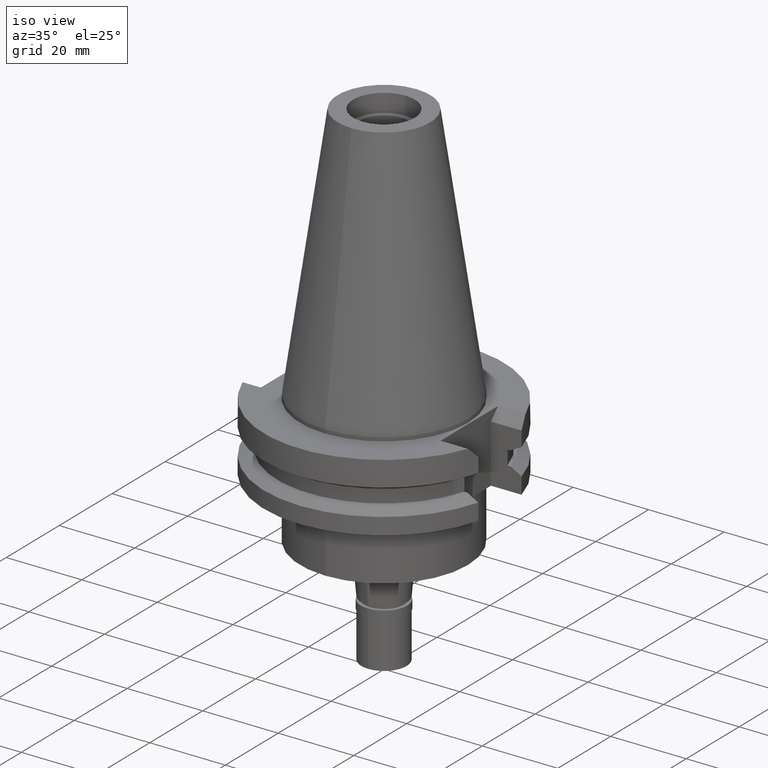
[diagram: clean part render]
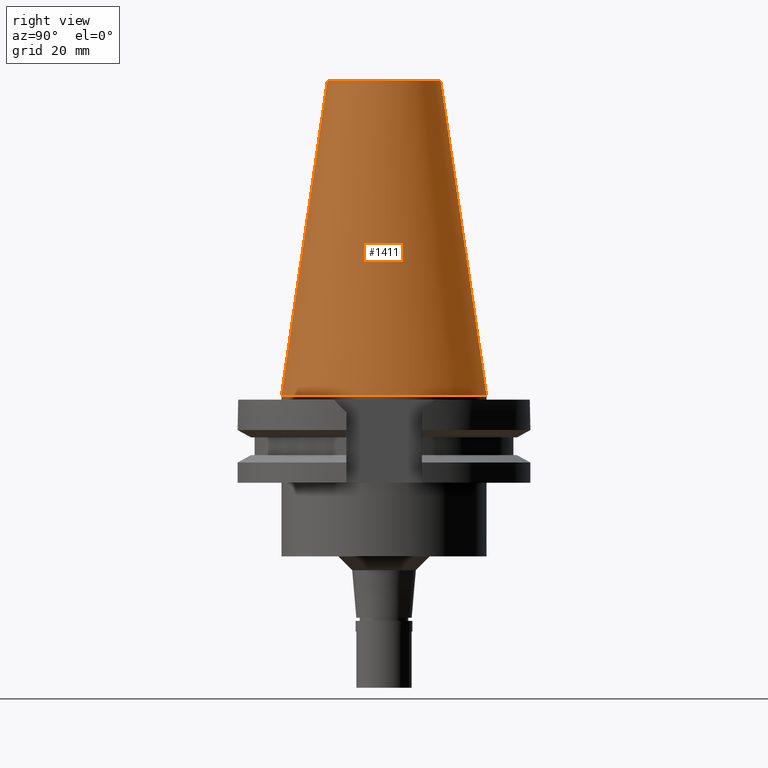
[diagram: tour spotlight — one face highlighted and labeled with its STEP entity id]
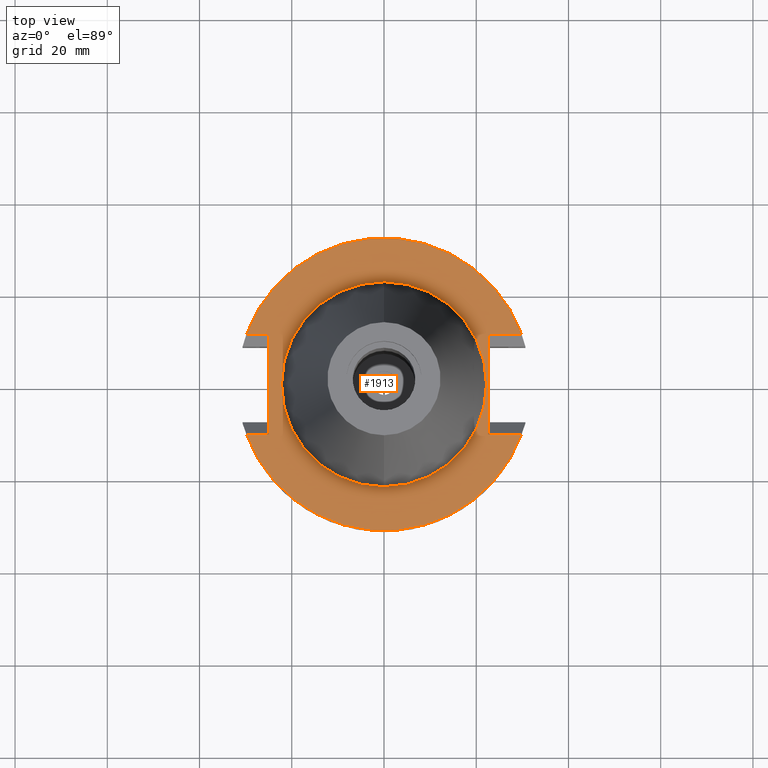
[diagram: tour spotlight — one face highlighted and labeled with its STEP entity id]
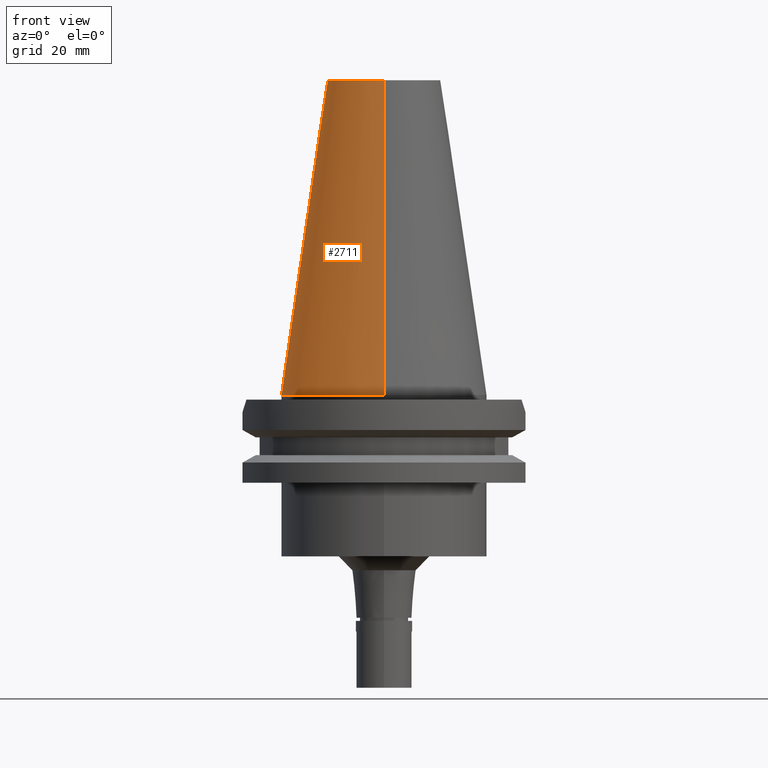
[diagram: tour spotlight — one face highlighted and labeled with its STEP entity id]
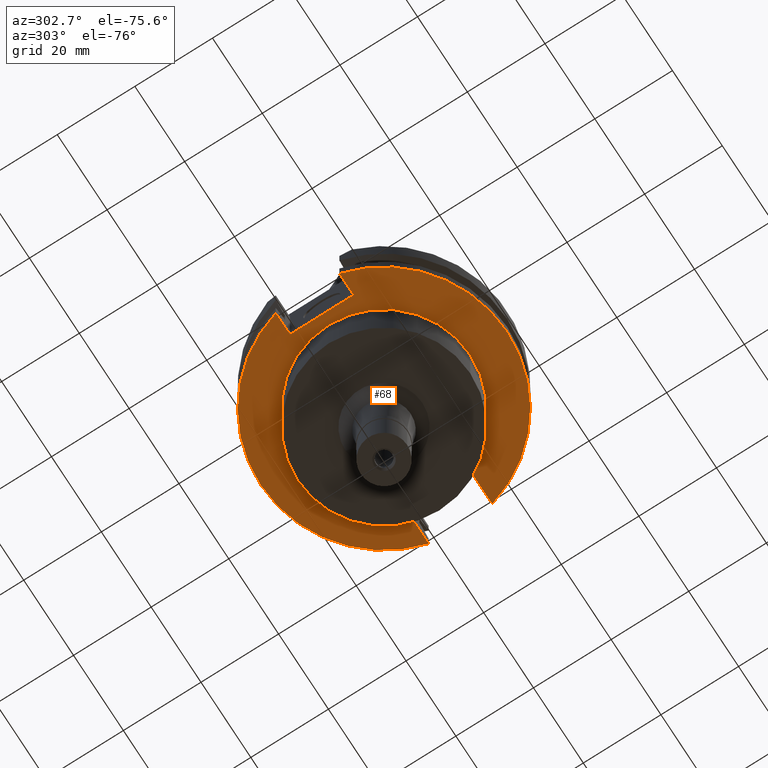
[diagram: tour spotlight — one face highlighted and labeled with its STEP entity id]
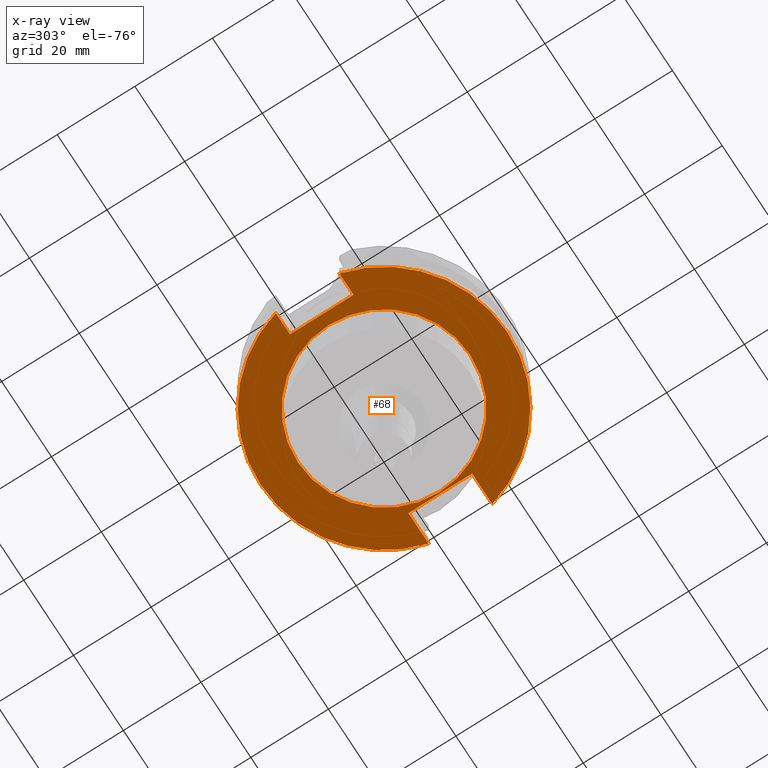
[diagram: x-ray of the same camera — body ghosted, this tour face saturated]
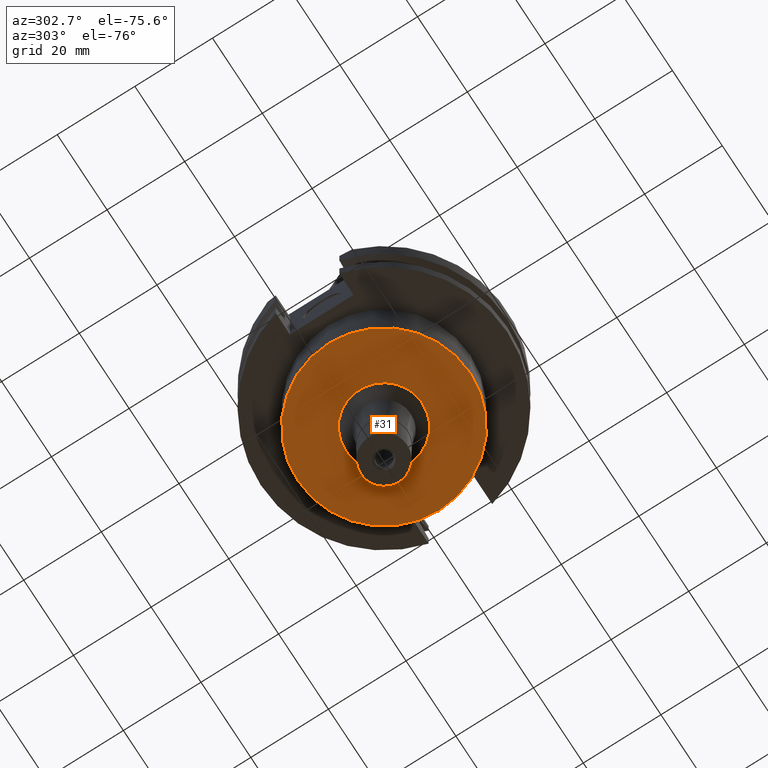
[diagram: tour spotlight — one face highlighted and labeled with its STEP entity id]
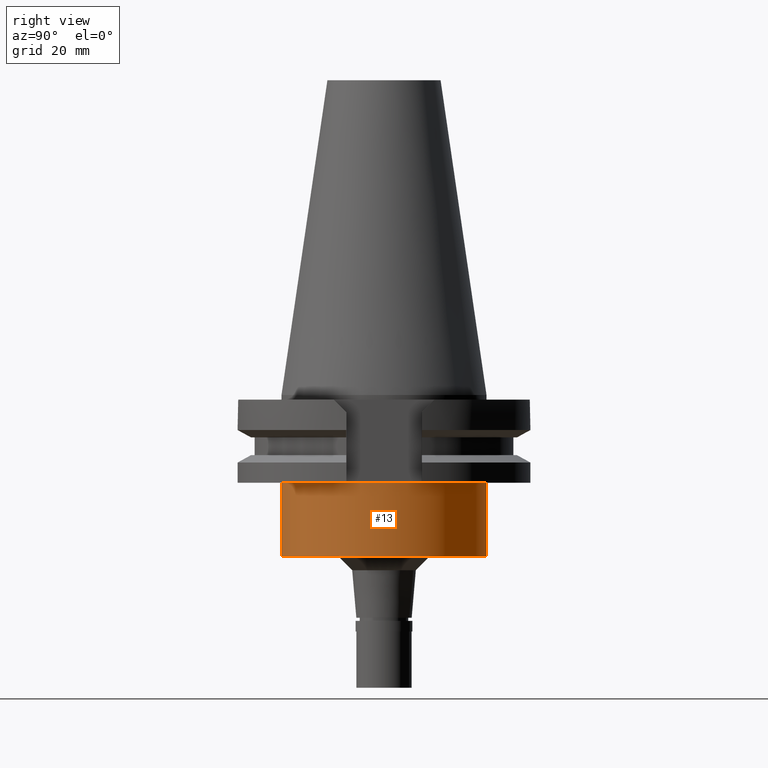
[diagram: tour spotlight — one face highlighted and labeled with its STEP entity id]
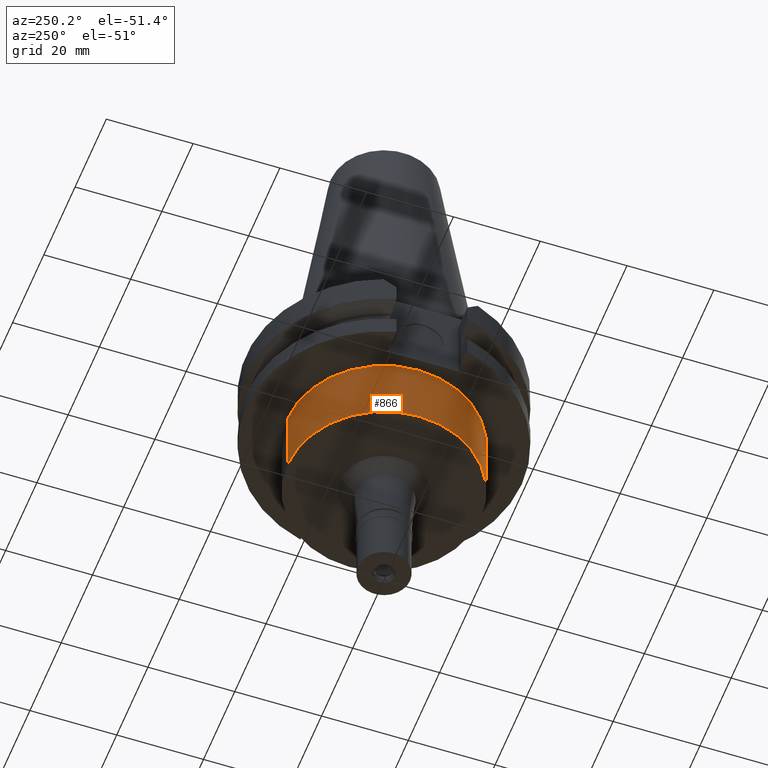
[diagram: tour spotlight — one face highlighted and labeled with its STEP entity id]
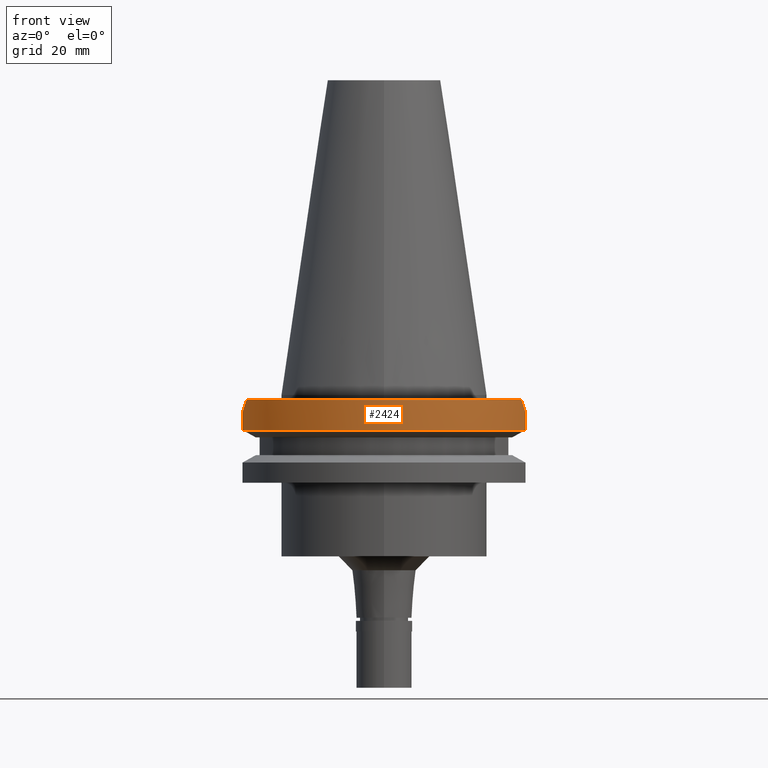
[diagram: tour spotlight — one face highlighted and labeled with its STEP entity id]
A machine part: a face-by-face anatomy tour. The part has 86 B-rep faces; the first image is the clean iso view, then the 8 largest visible faces are spotlighted one at a time (largest first), each with its STEP entity span.

Face 1 — right view, entity #1411. In plain terms, the highlighted conical surface has half-angle 8.297 deg.
Definition (entity closure, byte-faithful):
#133 = EDGE_CURVE ( 'NONE', #1041, #1320, #1796, .T. ) ;
#202 = CARTESIAN_POINT ( 'NONE',  ( 0.0000000000000000000, 22.22500000000000142, -2.131628207279999655E-13 ) ) ;
#357 = EDGE_CURVE ( 'NONE', #2630, #2412, #1840, .T. ) ;
#479 = AXIS2_PLACEMENT_3D ( 'NONE', #823, #1223, #972 ) ;
#536 = ORIENTED_EDGE ( 'NONE', *, *, #2733, .F. ) ;
#823 = CARTESIAN_POINT ( 'NONE',  ( 0.0000000000000000000, 1.642557519355999895E-14, 68.25000000000000000 ) ) ;
#972 = DIRECTION ( 'NONE',  ( 0.0000000000000000000, 1.000000000000000000, 0.0000000000000000000 ) ) ;
#1041 = VERTEX_POINT ( 'NONE', #202 ) ;
#1149 = VECTOR ( 'NONE', #1867, 1000.000000000000114 ) ;
#1223 = DIRECTION ( 'NONE',  ( 0.0000000000000000000, 0.0000000000000000000, -1.000000000000000000 ) ) ;
#1320 = VERTEX_POINT ( 'NONE', #3004 ) ;
#1411 = ADVANCED_FACE ( 'NONE', ( #1595 ), #1716, .T. ) ;
#1551 = AXIS2_PLACEMENT_3D ( 'NONE', #2192, #1669, #2652 ) ;
#1595 = FACE_OUTER_BOUND ( 'NONE', #1839, .T. ) ;
#1669 = DIRECTION ( 'NONE',  ( 0.0000000000000000000, 0.0000000000000000000, -1.000000000000000000 ) ) ;
#1716 = CONICAL_SURFACE ( 'NONE', #2024, 17.24843444035000317, 0.1448125860318199565 ) ;
#1796 = CIRCLE ( 'NONE', #1551, 22.22500000000000142 ) ;
#1839 = EDGE_LOOP ( 'NONE', ( #2395, #2590, #3038, #536 ) ) ;
#1840 = CIRCLE ( 'NONE', #479, 12.27186888070000137 ) ;
#1867 = DIRECTION ( 'NONE',  ( 0.0000000000000000000, -0.1443069799456937474, -0.9895329683941577192 ) ) ;
#2024 = AXIS2_PLACEMENT_3D ( 'NONE', #3033, #3049, #2752 ) ;
#2118 = LINE ( 'NONE', #3100, #1149 ) ;
#2192 = CARTESIAN_POINT ( 'NONE',  ( 0.0000000000000000000, 1.642557519355999895E-14, -3.126388037344000570E-13 ) ) ;
#2198 = VECTOR ( 'NONE', #2674, 1000.000000000000114 ) ;
#2254 = CARTESIAN_POINT ( 'NONE',  ( 0.0000000000000000000, -12.27186888070000137, 68.25000000000000000 ) ) ;
#2395 = ORIENTED_EDGE ( 'NONE', *, *, #357, .T. ) ;
#2412 = VERTEX_POINT ( 'NONE', #2254 ) ;
#2462 = LINE ( 'NONE', #2929, #2198 ) ;
#2570 = CARTESIAN_POINT ( 'NONE',  ( 0.0000000000000000000, 12.27186888070000137, 68.25000000000000000 ) ) ;
#2590 = ORIENTED_EDGE ( 'NONE', *, *, #3200, .T. ) ;
#2630 = VERTEX_POINT ( 'NONE', #2570 ) ;
#2652 = DIRECTION ( 'NONE',  ( 0.0000000000000000000, 1.000000000000000000, 0.0000000000000000000 ) ) ;
#2674 = DIRECTION ( 'NONE',  ( 0.0000000000000000000, 0.1443069799456937474, -0.9895329683941577192 ) ) ;
#2733 = EDGE_CURVE ( 'NONE', #2630, #1041, #2462, .T. ) ;
#2752 = DIRECTION ( 'NONE',  ( 0.0000000000000000000, -1.000000000000000000, 0.0000000000000000000 ) ) ;
#2929 = CARTESIAN_POINT ( 'NONE',  ( 0.0000000000000000000, 12.27186888070000137, 68.25000000000000000 ) ) ;
#3004 = CARTESIAN_POINT ( 'NONE',  ( 0.0000000000000000000, -22.22500000000000142, -2.131628207279999655E-13 ) ) ;
#3033 = CARTESIAN_POINT ( 'NONE',  ( 0.0000000000000000000, 1.642557519355999895E-14, 34.12500000000000000 ) ) ;
#3038 = ORIENTED_EDGE ( 'NONE', *, *, #133, .F. ) ;
#3049 = DIRECTION ( 'NONE',  ( 0.0000000000000000000, 0.0000000000000000000, -1.000000000000000000 ) ) ;
#3100 = CARTESIAN_POINT ( 'NONE',  ( 0.0000000000000000000, -12.27186888070000137, 68.25000000000000000 ) ) ;
#3200 = EDGE_CURVE ( 'NONE', #2412, #1320, #2118, .T. ) ;

Face 2 — top view, entity #1913. In plain terms, the highlighted planar face has unit normal (0, 0, -1).
Definition (entity closure, byte-faithful):
#25 = PLANE ( 'NONE',  #815 ) ;
#69 = CARTESIAN_POINT ( 'NONE',  ( 0.0000000000000000000, 1.212400331155999925E-14, -1.000000000000000000 ) ) ;
#74 = DIRECTION ( 'NONE',  ( 1.000000000000000000, -5.289407059416999757E-14, 0.0000000000000000000 ) ) ;
#92 = EDGE_CURVE ( 'NONE', #1649, #2190, #1416, .T. ) ;
#149 = CARTESIAN_POINT ( 'NONE',  ( 0.0000000000000000000, 2.138692553861000088E-14, -0.9999999999999000799 ) ) ;
#185 = DIRECTION ( 'NONE',  ( -1.000000000000000000, -8.031026493743999514E-14, 0.0000000000000000000 ) ) ;
#285 = EDGE_CURVE ( 'NONE', #2762, #1188, #318, .T. ) ;
#318 = CIRCLE ( 'NONE', #1334, 31.75000000000000000 ) ;
#356 = FACE_OUTER_BOUND ( 'NONE', #796, .T. ) ;
#412 = ORIENTED_EDGE ( 'NONE', *, *, #285, .F. ) ;
#437 = CARTESIAN_POINT ( 'NONE',  ( 0.0000000000000000000, 22.22500000000000142, -0.9999999999998000488 ) ) ;
#492 = LINE ( 'NONE', #521, #2997 ) ;
#514 = CARTESIAN_POINT ( 'NONE',  ( -24.98000000000000043, -10.89000000000000057, -1.000000000000000000 ) ) ;
#521 = CARTESIAN_POINT ( 'NONE',  ( 22.57000000000000028, 10.89000000000000057, -1.000000000000000000 ) ) ;
#544 = DIRECTION ( 'NONE',  ( 0.0000000000000000000, 1.000000000000000000, 0.0000000000000000000 ) ) ;
#591 = AXIS2_PLACEMENT_3D ( 'NONE', #2135, #3119, #2890 ) ;
#596 = CARTESIAN_POINT ( 'NONE',  ( 22.57000000000000028, 10.89000000000000057, -1.000000000000000000 ) ) ;
#607 = CARTESIAN_POINT ( 'NONE',  ( 0.0000000000000000000, 2.138692553861000088E-14, -0.9999999999998000488 ) ) ;
#714 = VERTEX_POINT ( 'NONE', #1545 ) ;
#739 = ORIENTED_EDGE ( 'NONE', *, *, #1248, .T. ) ;
#740 = CIRCLE ( 'NONE', #591, 22.22500000000000142 ) ;
#796 = EDGE_LOOP ( 'NONE', ( #739, #1061, #2437, #1460, #2092, #412, #832, #1015 ) ) ;
#802 = VERTEX_POINT ( 'NONE', #1037 ) ;
#807 = DIRECTION ( 'NONE',  ( 0.0000000000000000000, 0.0000000000000000000, 1.000000000000000000 ) ) ;
#815 = AXIS2_PLACEMENT_3D ( 'NONE', #69, #2519, #1758 ) ;
#827 = EDGE_CURVE ( 'NONE', #2190, #2675, #1346, .T. ) ;
#832 = ORIENTED_EDGE ( 'NONE', *, *, #1682, .F. ) ;
#873 = ORIENTED_EDGE ( 'NONE', *, *, #1638, .F. ) ;
#1007 = EDGE_CURVE ( 'NONE', #802, #714, #1344, .T. ) ;
#1015 = ORIENTED_EDGE ( 'NONE', *, *, #1007, .F. ) ;
#1037 = CARTESIAN_POINT ( 'NONE',  ( 22.57000000000000028, 10.89000000000000057, -1.000000000000000000 ) ) ;
#1061 = ORIENTED_EDGE ( 'NONE', *, *, #827, .F. ) ;
#1062 = VERTEX_POINT ( 'NONE', #2388 ) ;
#1130 = DIRECTION ( 'NONE',  ( 0.0000000000000000000, 0.0000000000000000000, -1.000000000000000000 ) ) ;
#1188 = VERTEX_POINT ( 'NONE', #3173 ) ;
#1238 = CARTESIAN_POINT ( 'NONE',  ( 29.82399034335000110, -10.89000000000000057, -1.000000000001000089 ) ) ;
#1245 = DIRECTION ( 'NONE',  ( 0.0000000000000000000, -1.000000000000000000, 0.0000000000000000000 ) ) ;
#1248 = EDGE_CURVE ( 'NONE', #802, #2675, #492, .T. ) ;
#1251 = CARTESIAN_POINT ( 'NONE',  ( -24.98000000000000043, -10.89000000000000057, -1.000000000000000000 ) ) ;
#1334 = AXIS2_PLACEMENT_3D ( 'NONE', #149, #1130, #2121 ) ;
#1344 = LINE ( 'NONE', #596, #1463 ) ;
#1346 = CIRCLE ( 'NONE', #2992, 31.75000000000000000 ) ;
#1416 = LINE ( 'NONE', #2152, #1453 ) ;
#1418 = VECTOR ( 'NONE', #1245, 1000.000000000000000 ) ;
#1435 = CARTESIAN_POINT ( 'NONE',  ( -24.98000000000000043, 10.89000000000000057, -1.000000000000000000 ) ) ;
#1453 = VECTOR ( 'NONE', #185, 1000.000000000000000 ) ;
#1460 = ORIENTED_EDGE ( 'NONE', *, *, #1826, .T. ) ;
#1463 = VECTOR ( 'NONE', #1623, 1000.000000000000000 ) ;
#1545 = CARTESIAN_POINT ( 'NONE',  ( 22.57000000000000028, -10.89000000000000057, -1.000000000000000000 ) ) ;
#1580 = VERTEX_POINT ( 'NONE', #437 ) ;
#1623 = DIRECTION ( 'NONE',  ( 0.0000000000000000000, -1.000000000000000000, 0.0000000000000000000 ) ) ;
#1638 = EDGE_CURVE ( 'NONE', #1062, #1580, #740, .T. ) ;
#1649 = VERTEX_POINT ( 'NONE', #1435 ) ;
#1682 = EDGE_CURVE ( 'NONE', #714, #2762, #1748, .T. ) ;
#1714 = EDGE_LOOP ( 'NONE', ( #2200, #873 ) ) ;
#1748 = LINE ( 'NONE', #2209, #3044 ) ;
#1758 = DIRECTION ( 'NONE',  ( 0.0000000000000000000, -1.000000000000000000, 0.0000000000000000000 ) ) ;
#1826 = EDGE_CURVE ( 'NONE', #1649, #2888, #2191, .T. ) ;
#1889 = EDGE_CURVE ( 'NONE', #1580, #1062, #2371, .T. ) ;
#1913 = ADVANCED_FACE ( 'NONE', ( #356, #2019 ), #25, .F. ) ;
#2019 = FACE_BOUND ( 'NONE', #1714, .T. ) ;
#2039 = CARTESIAN_POINT ( 'NONE',  ( 0.0000000000000000000, 2.138692553861000088E-14, -0.9999999999999000799 ) ) ;
#2092 = ORIENTED_EDGE ( 'NONE', *, *, #2837, .T. ) ;
#2096 = DIRECTION ( 'NONE',  ( 0.0000000000000000000, 0.0000000000000000000, -1.000000000000000000 ) ) ;
#2103 = AXIS2_PLACEMENT_3D ( 'NONE', #607, #807, #544 ) ;
#2121 = DIRECTION ( 'NONE',  ( 0.0000000000000000000, -1.000000000000000000, 0.0000000000000000000 ) ) ;
#2135 = CARTESIAN_POINT ( 'NONE',  ( 0.0000000000000000000, 2.138692553861000088E-14, -0.9999999999998000488 ) ) ;
#2152 = CARTESIAN_POINT ( 'NONE',  ( -24.98000000000000043, 10.89000000000000057, -1.000000000000000000 ) ) ;
#2161 = LINE ( 'NONE', #514, #2548 ) ;
#2190 = VERTEX_POINT ( 'NONE', #3179 ) ;
#2191 = LINE ( 'NONE', #3168, #1418 ) ;
#2200 = ORIENTED_EDGE ( 'NONE', *, *, #1889, .F. ) ;
#2209 = CARTESIAN_POINT ( 'NONE',  ( 22.57000000000000028, -10.89000000000000057, -1.000000000000000000 ) ) ;
#2348 = DIRECTION ( 'NONE',  ( 0.0000000000000000000, 1.000000000000000000, 0.0000000000000000000 ) ) ;
#2371 = CIRCLE ( 'NONE', #2103, 22.22500000000000142 ) ;
#2388 = CARTESIAN_POINT ( 'NONE',  ( 0.0000000000000000000, -22.22500000000000142, -0.9999999999998000488 ) ) ;
#2437 = ORIENTED_EDGE ( 'NONE', *, *, #92, .F. ) ;
#2519 = DIRECTION ( 'NONE',  ( 0.0000000000000000000, 0.0000000000000000000, -1.000000000000000000 ) ) ;
#2548 = VECTOR ( 'NONE', #2636, 1000.000000000000000 ) ;
#2636 = DIRECTION ( 'NONE',  ( -1.000000000000000000, 8.031026493743999514E-14, 0.0000000000000000000 ) ) ;
#2675 = VERTEX_POINT ( 'NONE', #3076 ) ;
#2762 = VERTEX_POINT ( 'NONE', #1238 ) ;
#2837 = EDGE_CURVE ( 'NONE', #2888, #1188, #2161, .T. ) ;
#2888 = VERTEX_POINT ( 'NONE', #1251 ) ;
#2890 = DIRECTION ( 'NONE',  ( 0.0000000000000000000, -1.000000000000000000, 0.0000000000000000000 ) ) ;
#2940 = DIRECTION ( 'NONE',  ( 1.000000000000000000, 5.436335033290000028E-14, 0.0000000000000000000 ) ) ;
#2992 = AXIS2_PLACEMENT_3D ( 'NONE', #2039, #2096, #2348 ) ;
#2997 = VECTOR ( 'NONE', #74, 1000.000000000000000 ) ;
#3044 = VECTOR ( 'NONE', #2940, 1000.000000000000000 ) ;
#3076 = CARTESIAN_POINT ( 'NONE',  ( 29.82399034335000110, 10.89000000000000057, -1.000000000001000089 ) ) ;
#3119 = DIRECTION ( 'NONE',  ( 0.0000000000000000000, 0.0000000000000000000, 1.000000000000000000 ) ) ;
#3168 = CARTESIAN_POINT ( 'NONE',  ( -24.98000000000000043, 10.89000000000000057, -1.000000000000000000 ) ) ;
#3173 = CARTESIAN_POINT ( 'NONE',  ( -29.82399034335000110, -10.89000000000000057, -1.000000000001000089 ) ) ;
#3179 = CARTESIAN_POINT ( 'NONE',  ( -29.82399034335000110, 10.89000000000000057, -0.9999999999999000799 ) ) ;

Face 3 — front view, entity #2711. In plain terms, the highlighted conical surface has half-angle 8.297 deg.
Definition (entity closure, byte-faithful):
#123 = CARTESIAN_POINT ( 'NONE',  ( 0.0000000000000000000, 1.642557519355999895E-14, -3.126388037344000570E-13 ) ) ;
#202 = CARTESIAN_POINT ( 'NONE',  ( 0.0000000000000000000, 22.22500000000000142, -2.131628207279999655E-13 ) ) ;
#349 = AXIS2_PLACEMENT_3D ( 'NONE', #929, #749, #1224 ) ;
#534 = ORIENTED_EDGE ( 'NONE', *, *, #2733, .T. ) ;
#605 = DIRECTION ( 'NONE',  ( 0.0000000000000000000, -1.000000000000000000, 0.0000000000000000000 ) ) ;
#703 = CONICAL_SURFACE ( 'NONE', #349, 17.24843444035000317, 0.1448125860318199565 ) ;
#749 = DIRECTION ( 'NONE',  ( 0.0000000000000000000, 0.0000000000000000000, -1.000000000000000000 ) ) ;
#833 = DIRECTION ( 'NONE',  ( 0.0000000000000000000, 0.0000000000000000000, -1.000000000000000000 ) ) ;
#867 = EDGE_CURVE ( 'NONE', #2412, #2630, #1759, .T. ) ;
#929 = CARTESIAN_POINT ( 'NONE',  ( 0.0000000000000000000, 1.642557519355999895E-14, 34.12500000000000000 ) ) ;
#1041 = VERTEX_POINT ( 'NONE', #202 ) ;
#1050 = CARTESIAN_POINT ( 'NONE',  ( 0.0000000000000000000, 1.642557519355999895E-14, 68.25000000000000000 ) ) ;
#1149 = VECTOR ( 'NONE', #1867, 1000.000000000000114 ) ;
#1214 = ORIENTED_EDGE ( 'NONE', *, *, #867, .T. ) ;
#1224 = DIRECTION ( 'NONE',  ( 0.0000000000000000000, -1.000000000000000000, 0.0000000000000000000 ) ) ;
#1235 = AXIS2_PLACEMENT_3D ( 'NONE', #123, #3092, #3110 ) ;
#1320 = VERTEX_POINT ( 'NONE', #3004 ) ;
#1424 = ORIENTED_EDGE ( 'NONE', *, *, #3200, .F. ) ;
#1759 = CIRCLE ( 'NONE', #2181, 12.27186888070000137 ) ;
#1867 = DIRECTION ( 'NONE',  ( 0.0000000000000000000, -0.1443069799456937474, -0.9895329683941577192 ) ) ;
#2012 = EDGE_LOOP ( 'NONE', ( #2308, #1424, #1214, #534 ) ) ;
#2118 = LINE ( 'NONE', #3100, #1149 ) ;
#2130 = EDGE_CURVE ( 'NONE', #1320, #1041, #2478, .T. ) ;
#2181 = AXIS2_PLACEMENT_3D ( 'NONE', #1050, #833, #605 ) ;
#2198 = VECTOR ( 'NONE', #2674, 1000.000000000000114 ) ;
#2254 = CARTESIAN_POINT ( 'NONE',  ( 0.0000000000000000000, -12.27186888070000137, 68.25000000000000000 ) ) ;
#2308 = ORIENTED_EDGE ( 'NONE', *, *, #2130, .F. ) ;
#2412 = VERTEX_POINT ( 'NONE', #2254 ) ;
#2462 = LINE ( 'NONE', #2929, #2198 ) ;
#2472 = FACE_OUTER_BOUND ( 'NONE', #2012, .T. ) ;
#2478 = CIRCLE ( 'NONE', #1235, 22.22500000000000142 ) ;
#2570 = CARTESIAN_POINT ( 'NONE',  ( 0.0000000000000000000, 12.27186888070000137, 68.25000000000000000 ) ) ;
#2630 = VERTEX_POINT ( 'NONE', #2570 ) ;
#2674 = DIRECTION ( 'NONE',  ( 0.0000000000000000000, 0.1443069799456937474, -0.9895329683941577192 ) ) ;
#2711 = ADVANCED_FACE ( 'NONE', ( #2472 ), #703, .T. ) ;
#2733 = EDGE_CURVE ( 'NONE', #2630, #1041, #2462, .T. ) ;
#2929 = CARTESIAN_POINT ( 'NONE',  ( 0.0000000000000000000, 12.27186888070000137, 68.25000000000000000 ) ) ;
#3004 = CARTESIAN_POINT ( 'NONE',  ( 0.0000000000000000000, -22.22500000000000142, -2.131628207279999655E-13 ) ) ;
#3092 = DIRECTION ( 'NONE',  ( 0.0000000000000000000, 0.0000000000000000000, -1.000000000000000000 ) ) ;
#3100 = CARTESIAN_POINT ( 'NONE',  ( 0.0000000000000000000, -12.27186888070000137, 68.25000000000000000 ) ) ;
#3110 = DIRECTION ( 'NONE',  ( 0.0000000000000000000, -1.000000000000000000, 0.0000000000000000000 ) ) ;
#3200 = EDGE_CURVE ( 'NONE', #2412, #1320, #2118, .T. ) ;

Face 4 — auxiliary view, entity #68. An x-ray twin of the same camera follows (body ghosted, this face saturated) — the face is partly hidden behind the body. In plain terms, the highlighted planar face has unit normal (0, 0, -1).
Definition (entity closure, byte-faithful):
#68 = ADVANCED_FACE ( 'NONE', ( #1651, #198 ), #2406, .T. ) ;
#79 = ORIENTED_EDGE ( 'NONE', *, *, #426, .F. ) ;
#96 = LINE ( 'NONE', #152, #1261 ) ;
#138 = ORIENTED_EDGE ( 'NONE', *, *, #1343, .F. ) ;
#152 = CARTESIAN_POINT ( 'NONE',  ( 22.57000000000000028, 8.189999999999999503, -19.05000000000000071 ) ) ;
#162 = LINE ( 'NONE', #2838, #1398 ) ;
#188 = DIRECTION ( 'NONE',  ( 0.0000000000000000000, -1.000000000000000000, 0.0000000000000000000 ) ) ;
#198 = FACE_BOUND ( 'NONE', #938, .T. ) ;
#219 = CARTESIAN_POINT ( 'NONE',  ( 0.0000000000000000000, 0.0000000000000000000, -19.05000000000000071 ) ) ;
#289 = LINE ( 'NONE', #1119, #1249 ) ;
#322 = DIRECTION ( 'NONE',  ( 0.0000000000000000000, 0.0000000000000000000, 1.000000000000000000 ) ) ;
#343 = VERTEX_POINT ( 'NONE', #1790 ) ;
#388 = CARTESIAN_POINT ( 'NONE',  ( 0.0000000000000000000, 2.138692553861000088E-14, -19.05000000000000071 ) ) ;
#426 = EDGE_CURVE ( 'NONE', #3138, #343, #162, .T. ) ;
#602 = VERTEX_POINT ( 'NONE', #1427 ) ;
#625 = CARTESIAN_POINT ( 'NONE',  ( -24.98000000000000043, 8.189999999999999503, -19.05000000000000071 ) ) ;
#708 = CARTESIAN_POINT ( 'NONE',  ( 0.0000000000000000000, 2.138692553861000088E-14, -19.05000000000000071 ) ) ;
#768 = DIRECTION ( 'NONE',  ( 1.000000000000000000, 0.0000000000000000000, 0.0000000000000000000 ) ) ;
#855 = DIRECTION ( 'NONE',  ( -1.000000000000000000, 0.0000000000000000000, 0.0000000000000000000 ) ) ;
#869 = AXIS2_PLACEMENT_3D ( 'NONE', #1464, #2899, #2935 ) ;
#890 = CARTESIAN_POINT ( 'NONE',  ( 0.0000000000000000000, -22.22500000000000142, -19.05000000000000071 ) ) ;
#909 = EDGE_CURVE ( 'NONE', #2253, #3015, #1272, .T. ) ;
#938 = EDGE_LOOP ( 'NONE', ( #1696, #1414 ) ) ;
#996 = VERTEX_POINT ( 'NONE', #890 ) ;
#1033 = CARTESIAN_POINT ( 'NONE',  ( 22.57000000000000028, -8.189999999999999503, -19.05000000000000071 ) ) ;
#1052 = ORIENTED_EDGE ( 'NONE', *, *, #2801, .F. ) ;
#1099 = CARTESIAN_POINT ( 'NONE',  ( 30.67550162588999640, -8.189999999999999503, -19.05000000000000071 ) ) ;
#1119 = CARTESIAN_POINT ( 'NONE',  ( -24.98000000000000043, 8.189999999999999503, -19.05000000000000071 ) ) ;
#1121 = VERTEX_POINT ( 'NONE', #2041 ) ;
#1165 = DIRECTION ( 'NONE',  ( 0.0000000000000000000, 0.0000000000000000000, -1.000000000000000000 ) ) ;
#1205 = CARTESIAN_POINT ( 'NONE',  ( -24.98000000000000043, 8.189999999999999503, -19.05000000000000071 ) ) ;
#1208 = EDGE_CURVE ( 'NONE', #1370, #602, #1978, .T. ) ;
#1225 = VERTEX_POINT ( 'NONE', #2457 ) ;
#1249 = VECTOR ( 'NONE', #2318, 1000.000000000000000 ) ;
#1261 = VECTOR ( 'NONE', #1639, 1000.000000000000000 ) ;
#1266 = EDGE_CURVE ( 'NONE', #1667, #1225, #289, .T. ) ;
#1272 = LINE ( 'NONE', #1033, #2581 ) ;
#1298 = CIRCLE ( 'NONE', #1854, 31.75000000000000000 ) ;
#1343 = EDGE_CURVE ( 'NONE', #602, #1225, #1298, .T. ) ;
#1370 = VERTEX_POINT ( 'NONE', #2538 ) ;
#1398 = VECTOR ( 'NONE', #855, 1000.000000000000000 ) ;
#1414 = ORIENTED_EDGE ( 'NONE', *, *, #1494, .F. ) ;
#1427 = CARTESIAN_POINT ( 'NONE',  ( 30.67550162588999640, 8.189999999999999503, -19.05000000000000071 ) ) ;
#1437 = CARTESIAN_POINT ( 'NONE',  ( -24.98000000000000043, -8.189999999999999503, -19.05000000000000071 ) ) ;
#1464 = CARTESIAN_POINT ( 'NONE',  ( 0.0000000000000000000, 2.138692553861000088E-14, -19.05000000000000071 ) ) ;
#1494 = EDGE_CURVE ( 'NONE', #996, #1121, #3157, .T. ) ;
#1505 = ORIENTED_EDGE ( 'NONE', *, *, #1208, .F. ) ;
#1550 = EDGE_LOOP ( 'NONE', ( #2238, #1987, #79, #1052, #2431, #138, #1505, #1809 ) ) ;
#1560 = DIRECTION ( 'NONE',  ( 0.0000000000000000000, 1.000000000000000000, 0.0000000000000000000 ) ) ;
#1639 = DIRECTION ( 'NONE',  ( 0.0000000000000000000, -1.000000000000000000, 0.0000000000000000000 ) ) ;
#1651 = FACE_OUTER_BOUND ( 'NONE', #1550, .T. ) ;
#1666 = AXIS2_PLACEMENT_3D ( 'NONE', #388, #2352, #2579 ) ;
#1667 = VERTEX_POINT ( 'NONE', #625 ) ;
#1684 = DIRECTION ( 'NONE',  ( 0.0000000000000000000, -1.000000000000000000, 0.0000000000000000000 ) ) ;
#1696 = ORIENTED_EDGE ( 'NONE', *, *, #2202, .F. ) ;
#1715 = DIRECTION ( 'NONE',  ( 0.0000000000000000000, 0.0000000000000000000, 1.000000000000000000 ) ) ;
#1790 = CARTESIAN_POINT ( 'NONE',  ( -30.67550162588999640, -8.189999999999999503, -19.05000000000000071 ) ) ;
#1794 = EDGE_CURVE ( 'NONE', #343, #3015, #2540, .T. ) ;
#1809 = ORIENTED_EDGE ( 'NONE', *, *, #2644, .T. ) ;
#1854 = AXIS2_PLACEMENT_3D ( 'NONE', #2798, #322, #1560 ) ;
#1978 = LINE ( 'NONE', #2976, #2746 ) ;
#1987 = ORIENTED_EDGE ( 'NONE', *, *, #1794, .F. ) ;
#2041 = CARTESIAN_POINT ( 'NONE',  ( 0.0000000000000000000, 22.22500000000000142, -19.05000000000000071 ) ) ;
#2185 = CARTESIAN_POINT ( 'NONE',  ( 22.57000000000000028, -8.189999999999999503, -19.05000000000000071 ) ) ;
#2202 = EDGE_CURVE ( 'NONE', #1121, #996, #2983, .T. ) ;
#2238 = ORIENTED_EDGE ( 'NONE', *, *, #909, .T. ) ;
#2253 = VERTEX_POINT ( 'NONE', #2185 ) ;
#2318 = DIRECTION ( 'NONE',  ( -1.000000000000000000, 0.0000000000000000000, 0.0000000000000000000 ) ) ;
#2352 = DIRECTION ( 'NONE',  ( 0.0000000000000000000, 0.0000000000000000000, -1.000000000000000000 ) ) ;
#2406 = PLANE ( 'NONE',  #2936 ) ;
#2431 = ORIENTED_EDGE ( 'NONE', *, *, #1266, .T. ) ;
#2457 = CARTESIAN_POINT ( 'NONE',  ( -30.67550162588999640, 8.189999999999999503, -19.05000000000000071 ) ) ;
#2538 = CARTESIAN_POINT ( 'NONE',  ( 22.57000000000000028, 8.189999999999999503, -19.05000000000000071 ) ) ;
#2540 = CIRCLE ( 'NONE', #2954, 31.75000000000000000 ) ;
#2579 = DIRECTION ( 'NONE',  ( 0.0000000000000000000, -1.000000000000000000, 0.0000000000000000000 ) ) ;
#2581 = VECTOR ( 'NONE', #2998, 1000.000000000000000 ) ;
#2644 = EDGE_CURVE ( 'NONE', #1370, #2253, #96, .T. ) ;
#2659 = LINE ( 'NONE', #1205, #3010 ) ;
#2746 = VECTOR ( 'NONE', #768, 1000.000000000000000 ) ;
#2798 = CARTESIAN_POINT ( 'NONE',  ( 0.0000000000000000000, 2.138692553861000088E-14, -19.05000000000000071 ) ) ;
#2801 = EDGE_CURVE ( 'NONE', #1667, #3138, #2659, .T. ) ;
#2838 = CARTESIAN_POINT ( 'NONE',  ( -24.98000000000000043, -8.189999999999999503, -19.05000000000000071 ) ) ;
#2899 = DIRECTION ( 'NONE',  ( 0.0000000000000000000, 0.0000000000000000000, -1.000000000000000000 ) ) ;
#2935 = DIRECTION ( 'NONE',  ( 0.0000000000000000000, 1.000000000000000000, 0.0000000000000000000 ) ) ;
#2936 = AXIS2_PLACEMENT_3D ( 'NONE', #219, #1165, #3133 ) ;
#2954 = AXIS2_PLACEMENT_3D ( 'NONE', #708, #1715, #1684 ) ;
#2976 = CARTESIAN_POINT ( 'NONE',  ( 22.57000000000000028, 8.189999999999999503, -19.05000000000000071 ) ) ;
#2983 = CIRCLE ( 'NONE', #869, 22.22500000000000142 ) ;
#2998 = DIRECTION ( 'NONE',  ( 1.000000000000000000, 0.0000000000000000000, 0.0000000000000000000 ) ) ;
#3010 = VECTOR ( 'NONE', #188, 1000.000000000000000 ) ;
#3015 = VERTEX_POINT ( 'NONE', #1099 ) ;
#3133 = DIRECTION ( 'NONE',  ( 0.0000000000000000000, -1.000000000000000000, 0.0000000000000000000 ) ) ;
#3138 = VERTEX_POINT ( 'NONE', #1437 ) ;
#3157 = CIRCLE ( 'NONE', #1666, 22.22500000000000142 ) ;

Face 5 — auxiliary view, entity #31. In plain terms, the highlighted planar face has unit normal (0, 0, -1).
Definition (entity closure, byte-faithful):
#31 = ADVANCED_FACE ( 'NONE', ( #1832, #2099 ), #1792, .T. ) ;
#57 = DIRECTION ( 'NONE',  ( 0.0000000000000000000, 0.0000000000000000000, -1.000000000000000000 ) ) ;
#103 = CIRCLE ( 'NONE', #440, 9.901133234316999321 ) ;
#148 = AXIS2_PLACEMENT_3D ( 'NONE', #2324, #1561, #2829 ) ;
#331 = AXIS2_PLACEMENT_3D ( 'NONE', #2274, #1059, #2040 ) ;
#440 = AXIS2_PLACEMENT_3D ( 'NONE', #2159, #691, #1672 ) ;
#446 = VERTEX_POINT ( 'NONE', #1594 ) ;
#588 = CARTESIAN_POINT ( 'NONE',  ( 0.0000000000000000000, -9.901133234316999321, -35.00000000000000000 ) ) ;
#592 = CARTESIAN_POINT ( 'NONE',  ( 0.0000000000000000000, 22.22500000000000142, -35.00000000000000000 ) ) ;
#651 = CIRCLE ( 'NONE', #799, 22.22500000000000142 ) ;
#691 = DIRECTION ( 'NONE',  ( 0.0000000000000000000, 0.0000000000000000000, -1.000000000000000000 ) ) ;
#720 = VERTEX_POINT ( 'NONE', #592 ) ;
#799 = AXIS2_PLACEMENT_3D ( 'NONE', #1154, #2090, #2143 ) ;
#814 = EDGE_CURVE ( 'NONE', #1874, #446, #2692, .T. ) ;
#1058 = DIRECTION ( 'NONE',  ( 0.0000000000000000000, -1.000000000000000000, 0.0000000000000000000 ) ) ;
#1059 = DIRECTION ( 'NONE',  ( 0.0000000000000000000, 0.0000000000000000000, 1.000000000000000000 ) ) ;
#1104 = EDGE_CURVE ( 'NONE', #446, #1874, #103, .T. ) ;
#1154 = CARTESIAN_POINT ( 'NONE',  ( 0.0000000000000000000, 2.138692553861000088E-14, -35.00000000000000000 ) ) ;
#1389 = EDGE_LOOP ( 'NONE', ( #1902, #1601 ) ) ;
#1443 = EDGE_LOOP ( 'NONE', ( #1884, #1646 ) ) ;
#1457 = EDGE_CURVE ( 'NONE', #3190, #720, #2696, .T. ) ;
#1561 = DIRECTION ( 'NONE',  ( 0.0000000000000000000, 0.0000000000000000000, -1.000000000000000000 ) ) ;
#1594 = CARTESIAN_POINT ( 'NONE',  ( 0.0000000000000000000, 9.901133234316999321, -35.00000000000000000 ) ) ;
#1601 = ORIENTED_EDGE ( 'NONE', *, *, #814, .F. ) ;
#1646 = ORIENTED_EDGE ( 'NONE', *, *, #1457, .F. ) ;
#1672 = DIRECTION ( 'NONE',  ( 0.0000000000000000000, 1.000000000000000000, 0.0000000000000000000 ) ) ;
#1792 = PLANE ( 'NONE',  #148 ) ;
#1832 = FACE_OUTER_BOUND ( 'NONE', #1443, .T. ) ;
#1874 = VERTEX_POINT ( 'NONE', #588 ) ;
#1884 = ORIENTED_EDGE ( 'NONE', *, *, #2667, .F. ) ;
#1902 = ORIENTED_EDGE ( 'NONE', *, *, #1104, .F. ) ;
#2040 = DIRECTION ( 'NONE',  ( 0.0000000000000000000, -1.000000000000000000, 0.0000000000000000000 ) ) ;
#2090 = DIRECTION ( 'NONE',  ( 0.0000000000000000000, 0.0000000000000000000, 1.000000000000000000 ) ) ;
#2099 = FACE_BOUND ( 'NONE', #1389, .T. ) ;
#2143 = DIRECTION ( 'NONE',  ( 0.0000000000000000000, 1.000000000000000000, 0.0000000000000000000 ) ) ;
#2159 = CARTESIAN_POINT ( 'NONE',  ( 0.0000000000000000000, 0.0000000000000000000, -35.00000000000000000 ) ) ;
#2274 = CARTESIAN_POINT ( 'NONE',  ( 0.0000000000000000000, 2.138692553861000088E-14, -35.00000000000000000 ) ) ;
#2285 = CARTESIAN_POINT ( 'NONE',  ( 0.0000000000000000000, 0.0000000000000000000, -35.00000000000000000 ) ) ;
#2324 = CARTESIAN_POINT ( 'NONE',  ( 0.0000000000000000000, 0.0000000000000000000, -35.00000000000000000 ) ) ;
#2603 = CARTESIAN_POINT ( 'NONE',  ( 0.0000000000000000000, -22.22500000000000142, -35.00000000000000000 ) ) ;
#2667 = EDGE_CURVE ( 'NONE', #720, #3190, #651, .T. ) ;
#2692 = CIRCLE ( 'NONE', #2893, 9.901133234316999321 ) ;
#2696 = CIRCLE ( 'NONE', #331, 22.22500000000000142 ) ;
#2829 = DIRECTION ( 'NONE',  ( 0.0000000000000000000, -1.000000000000000000, 0.0000000000000000000 ) ) ;
#2893 = AXIS2_PLACEMENT_3D ( 'NONE', #2285, #57, #1058 ) ;
#3190 = VERTEX_POINT ( 'NONE', #2603 ) ;

Face 6 — right view, entity #13. In plain terms, the highlighted cylindrical surface (partial cylindrical patch) has radius 22.225 mm, axis along (0, 0, -1).
Definition (entity closure, byte-faithful):
#6 = ORIENTED_EDGE ( 'NONE', *, *, #1457, .T. ) ;
#13 = ADVANCED_FACE ( 'NONE', ( #110 ), #3073, .T. ) ;
#110 = FACE_OUTER_BOUND ( 'NONE', #3086, .T. ) ;
#172 = LINE ( 'NONE', #423, #550 ) ;
#331 = AXIS2_PLACEMENT_3D ( 'NONE', #2274, #1059, #2040 ) ;
#423 = CARTESIAN_POINT ( 'NONE',  ( 0.0000000000000000000, 22.22500000000000142, -19.05000000000000071 ) ) ;
#550 = VECTOR ( 'NONE', #1347, 1000.000000000000000 ) ;
#575 = DIRECTION ( 'NONE',  ( 0.0000000000000000000, -1.000000000000000000, 0.0000000000000000000 ) ) ;
#592 = CARTESIAN_POINT ( 'NONE',  ( 0.0000000000000000000, 22.22500000000000142, -35.00000000000000000 ) ) ;
#641 = DIRECTION ( 'NONE',  ( 0.0000000000000000000, 0.0000000000000000000, -1.000000000000000000 ) ) ;
#720 = VERTEX_POINT ( 'NONE', #592 ) ;
#769 = ORIENTED_EDGE ( 'NONE', *, *, #2642, .F. ) ;
#869 = AXIS2_PLACEMENT_3D ( 'NONE', #1464, #2899, #2935 ) ;
#890 = CARTESIAN_POINT ( 'NONE',  ( 0.0000000000000000000, -22.22500000000000142, -19.05000000000000071 ) ) ;
#996 = VERTEX_POINT ( 'NONE', #890 ) ;
#1031 = AXIS2_PLACEMENT_3D ( 'NONE', #2841, #641, #575 ) ;
#1032 = DIRECTION ( 'NONE',  ( 0.0000000000000000000, 0.0000000000000000000, -1.000000000000000000 ) ) ;
#1044 = CARTESIAN_POINT ( 'NONE',  ( 0.0000000000000000000, -22.22500000000000142, -19.05000000000000071 ) ) ;
#1059 = DIRECTION ( 'NONE',  ( 0.0000000000000000000, 0.0000000000000000000, 1.000000000000000000 ) ) ;
#1121 = VERTEX_POINT ( 'NONE', #2041 ) ;
#1347 = DIRECTION ( 'NONE',  ( 0.0000000000000000000, 0.0000000000000000000, -1.000000000000000000 ) ) ;
#1421 = VECTOR ( 'NONE', #1032, 1000.000000000000000 ) ;
#1457 = EDGE_CURVE ( 'NONE', #3190, #720, #2696, .T. ) ;
#1464 = CARTESIAN_POINT ( 'NONE',  ( 0.0000000000000000000, 2.138692553861000088E-14, -19.05000000000000071 ) ) ;
#1797 = LINE ( 'NONE', #1044, #1421 ) ;
#2040 = DIRECTION ( 'NONE',  ( 0.0000000000000000000, -1.000000000000000000, 0.0000000000000000000 ) ) ;
#2041 = CARTESIAN_POINT ( 'NONE',  ( 0.0000000000000000000, 22.22500000000000142, -19.05000000000000071 ) ) ;
#2202 = EDGE_CURVE ( 'NONE', #1121, #996, #2983, .T. ) ;
#2274 = CARTESIAN_POINT ( 'NONE',  ( 0.0000000000000000000, 2.138692553861000088E-14, -35.00000000000000000 ) ) ;
#2376 = EDGE_CURVE ( 'NONE', #996, #3190, #1797, .T. ) ;
#2542 = ORIENTED_EDGE ( 'NONE', *, *, #2376, .T. ) ;
#2603 = CARTESIAN_POINT ( 'NONE',  ( 0.0000000000000000000, -22.22500000000000142, -35.00000000000000000 ) ) ;
#2642 = EDGE_CURVE ( 'NONE', #1121, #720, #172, .T. ) ;
#2696 = CIRCLE ( 'NONE', #331, 22.22500000000000142 ) ;
#2841 = CARTESIAN_POINT ( 'NONE',  ( 0.0000000000000000000, 2.138692553861000088E-14, 74.63749999999998863 ) ) ;
#2899 = DIRECTION ( 'NONE',  ( 0.0000000000000000000, 0.0000000000000000000, -1.000000000000000000 ) ) ;
#2900 = ORIENTED_EDGE ( 'NONE', *, *, #2202, .T. ) ;
#2935 = DIRECTION ( 'NONE',  ( 0.0000000000000000000, 1.000000000000000000, 0.0000000000000000000 ) ) ;
#2983 = CIRCLE ( 'NONE', #869, 22.22500000000000142 ) ;
#3073 = CYLINDRICAL_SURFACE ( 'NONE', #1031, 22.22500000000000142 ) ;
#3086 = EDGE_LOOP ( 'NONE', ( #2900, #2542, #6, #769 ) ) ;
#3190 = VERTEX_POINT ( 'NONE', #2603 ) ;

Face 7 — auxiliary view, entity #866. In plain terms, the highlighted cylindrical surface (partial cylindrical patch) has radius 22.225 mm, axis along (0, 0, -1).
Definition (entity closure, byte-faithful):
#53 = CYLINDRICAL_SURFACE ( 'NONE', #1134, 22.22500000000000142 ) ;
#172 = LINE ( 'NONE', #423, #550 ) ;
#388 = CARTESIAN_POINT ( 'NONE',  ( 0.0000000000000000000, 2.138692553861000088E-14, -19.05000000000000071 ) ) ;
#423 = CARTESIAN_POINT ( 'NONE',  ( 0.0000000000000000000, 22.22500000000000142, -19.05000000000000071 ) ) ;
#550 = VECTOR ( 'NONE', #1347, 1000.000000000000000 ) ;
#592 = CARTESIAN_POINT ( 'NONE',  ( 0.0000000000000000000, 22.22500000000000142, -35.00000000000000000 ) ) ;
#651 = CIRCLE ( 'NONE', #799, 22.22500000000000142 ) ;
#720 = VERTEX_POINT ( 'NONE', #592 ) ;
#799 = AXIS2_PLACEMENT_3D ( 'NONE', #1154, #2090, #2143 ) ;
#866 = ADVANCED_FACE ( 'NONE', ( #1290 ), #53, .T. ) ;
#890 = CARTESIAN_POINT ( 'NONE',  ( 0.0000000000000000000, -22.22500000000000142, -19.05000000000000071 ) ) ;
#996 = VERTEX_POINT ( 'NONE', #890 ) ;
#1032 = DIRECTION ( 'NONE',  ( 0.0000000000000000000, 0.0000000000000000000, -1.000000000000000000 ) ) ;
#1044 = CARTESIAN_POINT ( 'NONE',  ( 0.0000000000000000000, -22.22500000000000142, -19.05000000000000071 ) ) ;
#1121 = VERTEX_POINT ( 'NONE', #2041 ) ;
#1134 = AXIS2_PLACEMENT_3D ( 'NONE', #1586, #3041, #1771 ) ;
#1154 = CARTESIAN_POINT ( 'NONE',  ( 0.0000000000000000000, 2.138692553861000088E-14, -35.00000000000000000 ) ) ;
#1206 = ORIENTED_EDGE ( 'NONE', *, *, #2667, .T. ) ;
#1290 = FACE_OUTER_BOUND ( 'NONE', #1996, .T. ) ;
#1347 = DIRECTION ( 'NONE',  ( 0.0000000000000000000, 0.0000000000000000000, -1.000000000000000000 ) ) ;
#1421 = VECTOR ( 'NONE', #1032, 1000.000000000000000 ) ;
#1492 = ORIENTED_EDGE ( 'NONE', *, *, #1494, .T. ) ;
#1494 = EDGE_CURVE ( 'NONE', #996, #1121, #3157, .T. ) ;
#1553 = ORIENTED_EDGE ( 'NONE', *, *, #2376, .F. ) ;
#1586 = CARTESIAN_POINT ( 'NONE',  ( 0.0000000000000000000, 2.138692553861000088E-14, 74.63749999999998863 ) ) ;
#1666 = AXIS2_PLACEMENT_3D ( 'NONE', #388, #2352, #2579 ) ;
#1771 = DIRECTION ( 'NONE',  ( 0.0000000000000000000, -1.000000000000000000, 0.0000000000000000000 ) ) ;
#1797 = LINE ( 'NONE', #1044, #1421 ) ;
#1996 = EDGE_LOOP ( 'NONE', ( #1206, #1553, #1492, #2637 ) ) ;
#2041 = CARTESIAN_POINT ( 'NONE',  ( 0.0000000000000000000, 22.22500000000000142, -19.05000000000000071 ) ) ;
#2090 = DIRECTION ( 'NONE',  ( 0.0000000000000000000, 0.0000000000000000000, 1.000000000000000000 ) ) ;
#2143 = DIRECTION ( 'NONE',  ( 0.0000000000000000000, 1.000000000000000000, 0.0000000000000000000 ) ) ;
#2352 = DIRECTION ( 'NONE',  ( 0.0000000000000000000, 0.0000000000000000000, -1.000000000000000000 ) ) ;
#2376 = EDGE_CURVE ( 'NONE', #996, #3190, #1797, .T. ) ;
#2579 = DIRECTION ( 'NONE',  ( 0.0000000000000000000, -1.000000000000000000, 0.0000000000000000000 ) ) ;
#2603 = CARTESIAN_POINT ( 'NONE',  ( 0.0000000000000000000, -22.22500000000000142, -35.00000000000000000 ) ) ;
#2637 = ORIENTED_EDGE ( 'NONE', *, *, #2642, .T. ) ;
#2642 = EDGE_CURVE ( 'NONE', #1121, #720, #172, .T. ) ;
#2667 = EDGE_CURVE ( 'NONE', #720, #3190, #651, .T. ) ;
#3041 = DIRECTION ( 'NONE',  ( 0.0000000000000000000, 0.0000000000000000000, -1.000000000000000000 ) ) ;
#3157 = CIRCLE ( 'NONE', #1666, 22.22500000000000142 ) ;
#3190 = VERTEX_POINT ( 'NONE', #2603 ) ;

Face 8 — front view, entity #2424. In plain terms, the highlighted cylindrical surface (partial cylindrical patch) has radius 31.75 mm, axis along (0, 0, -1).
Definition (entity closure, byte-faithful):
#17 = CARTESIAN_POINT ( 'NONE',  ( 0.0000000000000000000, 1.121722380078999823E-14, -7.601333230925999551 ) ) ;
#52 = EDGE_CURVE ( 'NONE', #2762, #1174, #3067, .T. ) ;
#115 = EDGE_CURVE ( 'NONE', #2204, #1188, #2272, .T. ) ;
#149 = CARTESIAN_POINT ( 'NONE',  ( 0.0000000000000000000, 2.138692553861000088E-14, -0.9999999999999000799 ) ) ;
#151 = ORIENTED_EDGE ( 'NONE', *, *, #328, .T. ) ;
#228 = DIRECTION ( 'NONE',  ( -4.161794159570944436E-08, -1.558797014422979643E-07, -0.9999999999999868994 ) ) ;
#245 = DIRECTION ( 'NONE',  ( 0.0000000000000000000, 0.0000000000000000000, 1.000000000000000000 ) ) ;
#285 = EDGE_CURVE ( 'NONE', #2762, #1188, #318, .T. ) ;
#318 = CIRCLE ( 'NONE', #1334, 31.75000000000000000 ) ;
#321 = EDGE_LOOP ( 'NONE', ( #2537, #947, #565, #1483, #151, #2506 ) ) ;
#328 = EDGE_CURVE ( 'NONE', #1940, #1269, #725, .T. ) ;
#482 = CARTESIAN_POINT ( 'NONE',  ( 30.67550162588999640, -8.189999999999999503, -3.700000000000000178 ) ) ;
#565 = ORIENTED_EDGE ( 'NONE', *, *, #115, .F. ) ;
#604 = EDGE_CURVE ( 'NONE', #1174, #1269, #2163, .T. ) ;
#689 = CARTESIAN_POINT ( 'NONE',  ( -30.67550162588999640, -8.189999999999999503, -3.700000000000000178 ) ) ;
#722 = CARTESIAN_POINT ( 'NONE',  ( -29.82399034335000110, -10.89000000000000057, -1.000000000001000089 ) ) ;
#725 = CIRCLE ( 'NONE', #1600, 31.74999999999998579 ) ;
#817 = CARTESIAN_POINT ( 'NONE',  ( 0.0000000000000000000, 2.138692553861000088E-14, 74.63749999999998863 ) ) ;
#947 = ORIENTED_EDGE ( 'NONE', *, *, #285, .T. ) ;
#1009 = DIRECTION ( 'NONE',  ( -0.9661575315241073270, -0.2579527559055020958, 0.0000000000000000000 ) ) ;
#1063 = DIRECTION ( 'NONE',  ( 0.0000000000000000000, 0.0000000000000000000, -1.000000000000000000 ) ) ;
#1069 = CARTESIAN_POINT ( 'NONE',  ( 30.67550146351999629, -8.190000608138001681, -7.601327796251999835 ) ) ;
#1130 = DIRECTION ( 'NONE',  ( 0.0000000000000000000, 0.0000000000000000000, -1.000000000000000000 ) ) ;
#1174 = VERTEX_POINT ( 'NONE', #2707 ) ;
#1188 = VERTEX_POINT ( 'NONE', #3173 ) ;
#1238 = CARTESIAN_POINT ( 'NONE',  ( 29.82399034335000110, -10.89000000000000057, -1.000000000001000089 ) ) ;
#1269 = VERTEX_POINT ( 'NONE', #1069 ) ;
#1324 = CARTESIAN_POINT ( 'NONE',  ( -30.67550165990999744, -8.189999872590000507, -7.601334369515999612 ) ) ;
#1334 = AXIS2_PLACEMENT_3D ( 'NONE', #149, #1130, #2121 ) ;
#1366 = EDGE_CURVE ( 'NONE', #1940, #2204, #2553, .T. ) ;
#1444 = CARTESIAN_POINT ( 'NONE',  ( -30.67550162588999640, -8.189999999999999503, -3.700000000000000178 ) ) ;
#1483 = ORIENTED_EDGE ( 'NONE', *, *, #1366, .F. ) ;
#1539 = DIRECTION ( 'NONE',  ( 0.0000000000000000000, -1.000000000000000000, 0.0000000000000000000 ) ) ;
#1552 = CYLINDRICAL_SURFACE ( 'NONE', #2756, 31.75000000000000000 ) ;
#1600 = AXIS2_PLACEMENT_3D ( 'NONE', #17, #245, #1009 ) ;
#1757 = VECTOR ( 'NONE', #228, 1000.000000000000114 ) ;
#1804 = CARTESIAN_POINT ( 'NONE',  ( 29.82399034335000110, -10.89000000000000057, -1.000000000001000089 ) ) ;
#1921 = CARTESIAN_POINT ( 'NONE',  ( -30.14799306409551960, -10.00266721625513888, -1.887332783744861908 ) ) ;
#1940 = VERTEX_POINT ( 'NONE', #1324 ) ;
#2121 = DIRECTION ( 'NONE',  ( 0.0000000000000000000, -1.000000000000000000, 0.0000000000000000000 ) ) ;
#2163 = LINE ( 'NONE', #482, #1757 ) ;
#2204 = VERTEX_POINT ( 'NONE', #1444 ) ;
#2272 = B_SPLINE_CURVE_WITH_KNOTS ( 'NONE', 3,
 ( #689, #3169, #1921, #722 ),
 .UNSPECIFIED., .F., .F.,
 ( 4, 4 ),
 ( 0.0000000000000000000, 1.000000000000000000 ),
 .UNSPECIFIED. ) ;
#2332 = CARTESIAN_POINT ( 'NONE',  ( -30.67550165990999744, -8.189999872590000507, -7.601334369515999612 ) ) ;
#2386 = CARTESIAN_POINT ( 'NONE',  ( 30.43183015827552396, -9.102667216255303728, -2.787332783744696840 ) ) ;
#2424 = ADVANCED_FACE ( 'NONE', ( #3039 ), #1552, .T. ) ;
#2506 = ORIENTED_EDGE ( 'NONE', *, *, #604, .F. ) ;
#2510 = DIRECTION ( 'NONE',  ( 8.719468033803995180E-09, -3.265817006202999118E-08, 0.9999999999999994449 ) ) ;
#2537 = ORIENTED_EDGE ( 'NONE', *, *, #52, .F. ) ;
#2553 = LINE ( 'NONE', #2332, #2586 ) ;
#2586 = VECTOR ( 'NONE', #2510, 1000.000000000000114 ) ;
#2707 = CARTESIAN_POINT ( 'NONE',  ( 30.67550162588999640, -8.189999999999999503, -3.700000000000000178 ) ) ;
#2756 = AXIS2_PLACEMENT_3D ( 'NONE', #817, #1063, #1539 ) ;
#2762 = VERTEX_POINT ( 'NONE', #1238 ) ;
#2875 = CARTESIAN_POINT ( 'NONE',  ( 30.14799306409552671, -10.00266721625513888, -1.887332783744861908 ) ) ;
#3039 = FACE_OUTER_BOUND ( 'NONE', #321, .T. ) ;
#3067 = B_SPLINE_CURVE_WITH_KNOTS ( 'NONE', 3,
 ( #1804, #2875, #2386, #3120 ),
 .UNSPECIFIED., .F., .F.,
 ( 4, 4 ),
 ( 0.0000000000000000000, 1.000000000000000000 ),
 .UNSPECIFIED. ) ;
#3120 = CARTESIAN_POINT ( 'NONE',  ( 30.67550162588999640, -8.189999999999999503, -3.700000000000000178 ) ) ;
#3169 = CARTESIAN_POINT ( 'NONE',  ( -30.43183015827552040, -9.102667216255303728, -2.787332783744696840 ) ) ;
#3173 = CARTESIAN_POINT ( 'NONE',  ( -29.82399034335000110, -10.89000000000000057, -1.000000000001000089 ) ) ;